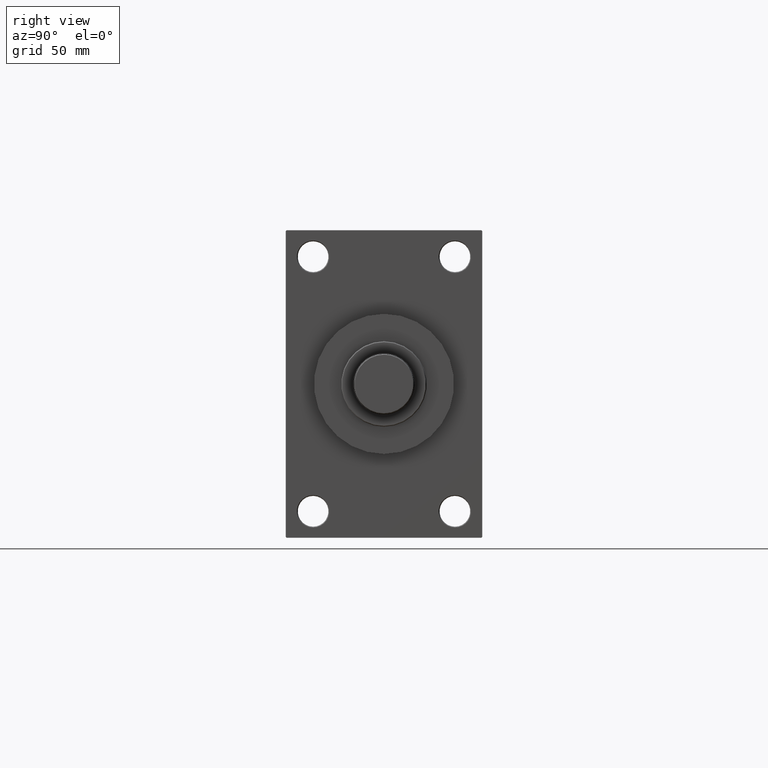
[diagram: clean part render]
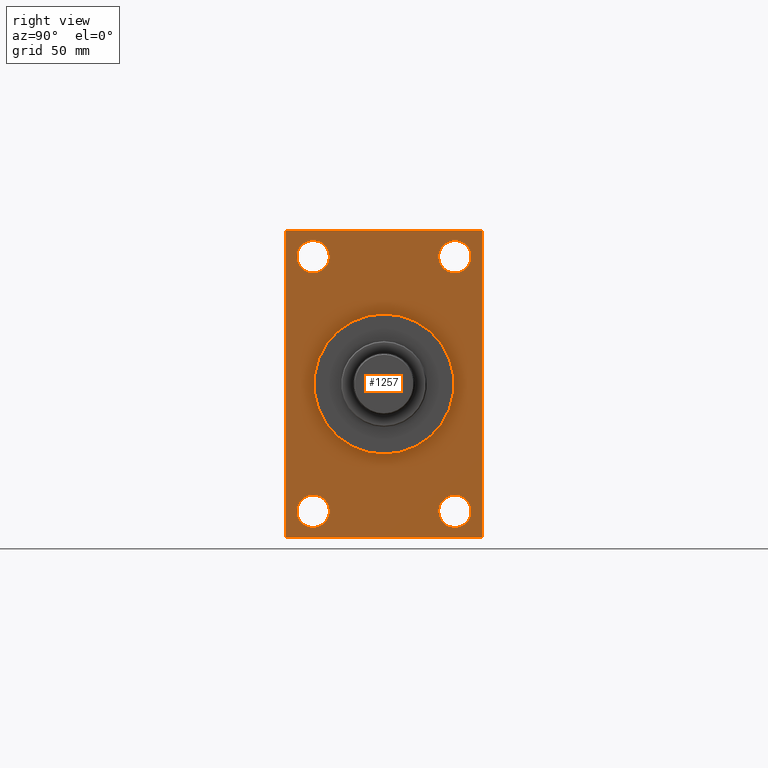
[diagram: same view with one face highlighted and labeled with its STEP entity id]
A machine part, right view. The second image highlights one B-rep face of the part: STEP entity #1257.
In plain terms, the highlighted planar face has unit normal (-1, 0, 0).
Its self-contained STEP definition (entity closure, byte-faithful):
#439 = LINE ( 'NONE', #7283, #30003 ) ;
#1257 = ADVANCED_FACE ( 'NONE', ( #40769, #7895, #30276, #26161, #44657, #29572 ), #44181, .F. ) ;
#1533 = VERTEX_POINT ( 'NONE', #10318 ) ;
#2007 = DIRECTION ( 'NONE',  ( 0.000000000000000000, 0.000000000000000000, -1.000000000000000000 ) ) ;
#2124 = DIRECTION ( 'NONE',  ( -1.000000000000000000, -0.000000000000000000, -0.000000000000000000 ) ) ;
#2259 = DIRECTION ( 'NONE',  ( -1.000000000000000000, -0.000000000000000000, -0.000000000000000000 ) ) ;
#3126 = CARTESIAN_POINT ( 'NONE',  ( 264.0000000000000000, 0.000000000000000000, 41.00000000000000000 ) ) ;
#3174 = ORIENTED_EDGE ( 'NONE', *, *, #18250, .T. ) ;
#3189 = CARTESIAN_POINT ( 'NONE',  ( 264.0000000000000000, 41.49999999999999289, 74.50000000000001421 ) ) ;
#3218 = ORIENTED_EDGE ( 'NONE', *, *, #27982, .T. ) ;
#3869 = EDGE_LOOP ( 'NONE', ( #9653, #43573 ) ) ;
#3962 = ORIENTED_EDGE ( 'NONE', *, *, #41579, .T. ) ;
#4063 = VERTEX_POINT ( 'NONE', #35693 ) ;
#4368 = CARTESIAN_POINT ( 'NONE',  ( 264.0000000000000000, 41.49999999999999289, 65.00000000000005684 ) ) ;
#4671 = VERTEX_POINT ( 'NONE', #27491 ) ;
#4779 = ORIENTED_EDGE ( 'NONE', *, *, #6148, .T. ) ;
#5546 = VERTEX_POINT ( 'NONE', #5891 ) ;
#5891 = CARTESIAN_POINT ( 'NONE',  ( 264.0000000000000000, -41.50000000000000711, -83.99999999999992895 ) ) ;
#5987 = CIRCLE ( 'NONE', #19215, 9.499999999999953815 ) ;
#5997 = ORIENTED_EDGE ( 'NONE', *, *, #31874, .T. ) ;
#6129 = VECTOR ( 'NONE', #44430, 1000.000000000000000 ) ;
#6148 = EDGE_CURVE ( 'NONE', #43293, #46930, #47675, .T. ) ;
#6236 = DIRECTION ( 'NONE',  ( -1.000000000000000000, -0.000000000000000000, -0.000000000000000000 ) ) ;
#6815 = VECTOR ( 'NONE', #47874, 1000.000000000000000 ) ;
#7283 = CARTESIAN_POINT ( 'NONE',  ( 264.0000000000000000, 57.50000000000000000, -89.50000000000000000 ) ) ;
#7895 = FACE_BOUND ( 'NONE', #11377, .T. ) ;
#8031 = DIRECTION ( 'NONE',  ( 0.000000000000000000, 0.000000000000000000, 1.000000000000000000 ) ) ;
#9022 = CARTESIAN_POINT ( 'NONE',  ( 264.0000000000000000, 0.000000000000000000, 0.000000000000000000 ) ) ;
#9478 = VERTEX_POINT ( 'NONE', #40343 ) ;
#9653 = ORIENTED_EDGE ( 'NONE', *, *, #34565, .T. ) ;
#10318 = CARTESIAN_POINT ( 'NONE',  ( 264.0000000000000000, -41.50000000000000711, -65.00000000000002842 ) ) ;
#10461 = EDGE_LOOP ( 'NONE', ( #3962, #29734 ) ) ;
#10854 = DIRECTION ( 'NONE',  ( -1.000000000000000000, 0.000000000000000000, -0.000000000000000000 ) ) ;
#11122 = DIRECTION ( 'NONE',  ( 0.000000000000000000, -0.7071067811865867636, 0.7071067811865081598 ) ) ;
#11345 = VERTEX_POINT ( 'NONE', #27713 ) ;
#11377 = EDGE_LOOP ( 'NONE', ( #39455, #3218 ) ) ;
#12013 = VERTEX_POINT ( 'NONE', #12448 ) ;
#12234 = VECTOR ( 'NONE', #11122, 1000.000000000000000 ) ;
#12257 = VERTEX_POINT ( 'NONE', #14094 ) ;
#12448 = CARTESIAN_POINT ( 'NONE',  ( 264.0000000000000000, 57.00000000000000000, -90.00000000000000000 ) ) ;
#13076 = VECTOR ( 'NONE', #30802, 1000.000000000000000 ) ;
#13752 = CARTESIAN_POINT ( 'NONE',  ( 264.0000000000000000, 41.49999999999999289, -83.99999999999992895 ) ) ;
#14094 = CARTESIAN_POINT ( 'NONE',  ( 264.0000000000000000, -57.00000000000000000, 90.00000000000000000 ) ) ;
#14121 = CIRCLE ( 'NONE', #18002, 9.499999999999953815 ) ;
#14205 = VERTEX_POINT ( 'NONE', #46781 ) ;
#14457 = EDGE_CURVE ( 'NONE', #12257, #11345, #28710, .T. ) ;
#14559 = AXIS2_PLACEMENT_3D ( 'NONE', #9022, #38473, #34803 ) ;
#15007 = CARTESIAN_POINT ( 'NONE',  ( 264.0000000000000000, 56.99999999999994316, 90.00000000000000000 ) ) ;
#15752 = CARTESIAN_POINT ( 'NONE',  ( 264.0000000000000000, -56.99999999999994316, -90.00000000000000000 ) ) ;
#16076 = CIRCLE ( 'NONE', #43306, 9.499999999999953815 ) ;
#16092 = EDGE_CURVE ( 'NONE', #12013, #4063, #439, .T. ) ;
#17162 = DIRECTION ( 'NONE',  ( -1.000000000000000000, -0.000000000000000000, -0.000000000000000000 ) ) ;
#17431 = DIRECTION ( 'NONE',  ( 0.000000000000000000, 0.000000000000000000, 1.000000000000000000 ) ) ;
#17525 = VERTEX_POINT ( 'NONE', #47299 ) ;
#17647 = VECTOR ( 'NONE', #23236, 1000.000000000000000 ) ;
#17688 = AXIS2_PLACEMENT_3D ( 'NONE', #3189, #36060, #39705 ) ;
#17802 = VERTEX_POINT ( 'NONE', #3126 ) ;
#18002 = AXIS2_PLACEMENT_3D ( 'NONE', #42047, #2124, #31328 ) ;
#18190 = LINE ( 'NONE', #33013, #6815 ) ;
#18250 = EDGE_CURVE ( 'NONE', #11345, #43293, #18863, .T. ) ;
#18392 = LINE ( 'NONE', #40785, #6129 ) ;
#18446 = CIRCLE ( 'NONE', #17688, 9.499999999999953815 ) ;
#18711 = EDGE_CURVE ( 'NONE', #17525, #24856, #18446, .T. ) ;
#18863 = LINE ( 'NONE', #34649, #17647 ) ;
#19215 = AXIS2_PLACEMENT_3D ( 'NONE', #39682, #25315, #21421 ) ;
#19807 = VERTEX_POINT ( 'NONE', #13752 ) ;
#20268 = DIRECTION ( 'NONE',  ( 0.000000000000000000, 0.000000000000000000, 1.000000000000000000 ) ) ;
#21051 = EDGE_CURVE ( 'NONE', #17802, #31660, #36303, .T. ) ;
#21155 = CARTESIAN_POINT ( 'NONE',  ( 264.0000000000000000, -56.99999999999994316, -90.00000000000000000 ) ) ;
#21302 = DIRECTION ( 'NONE',  ( 0.000000000000000000, 0.000000000000000000, 1.000000000000000000 ) ) ;
#21421 = DIRECTION ( 'NONE',  ( 0.000000000000000000, 0.000000000000000000, 1.000000000000000000 ) ) ;
#21538 = CARTESIAN_POINT ( 'NONE',  ( 264.0000000000000000, -41.50000000000000711, -74.49999999999998579 ) ) ;
#21626 = CIRCLE ( 'NONE', #33250, 41.00000000000000000 ) ;
#21695 = ORIENTED_EDGE ( 'NONE', *, *, #33173, .F. ) ;
#22549 = CARTESIAN_POINT ( 'NONE',  ( 264.0000000000000000, -57.50000000000000000, -89.49999999999994316 ) ) ;
#22707 = EDGE_CURVE ( 'NONE', #5546, #1533, #36376, .T. ) ;
#22887 = ORIENTED_EDGE ( 'NONE', *, *, #34263, .T. ) ;
#23236 = DIRECTION ( 'NONE',  ( 0.000000000000000000, 0.000000000000000000, -1.000000000000000000 ) ) ;
#23346 = DIRECTION ( 'NONE',  ( 0.000000000000000000, 0.000000000000000000, 1.000000000000000000 ) ) ;
#24799 = EDGE_CURVE ( 'NONE', #19807, #36792, #45735, .T. ) ;
#24856 = VERTEX_POINT ( 'NONE', #4368 ) ;
#25315 = DIRECTION ( 'NONE',  ( -1.000000000000000000, -0.000000000000000000, -0.000000000000000000 ) ) ;
#25541 = CARTESIAN_POINT ( 'NONE',  ( 264.0000000000000000, 5.021051876504148963E-15, -41.00000000000000000 ) ) ;
#25766 = CARTESIAN_POINT ( 'NONE',  ( 264.0000000000000000, -41.50000000000000711, 65.00000000000005684 ) ) ;
#25979 = ORIENTED_EDGE ( 'NONE', *, *, #21051, .F. ) ;
#26161 = FACE_BOUND ( 'NONE', #3869, .T. ) ;
#26258 = AXIS2_PLACEMENT_3D ( 'NONE', #21538, #17162, #21302 ) ;
#26692 = LINE ( 'NONE', #30089, #13076 ) ;
#27491 = CARTESIAN_POINT ( 'NONE',  ( 264.0000000000000000, 57.50000000000000000, 89.50000000000000000 ) ) ;
#27713 = CARTESIAN_POINT ( 'NONE',  ( 264.0000000000000000, -57.50000000000000000, 89.50000000000000000 ) ) ;
#27982 = EDGE_CURVE ( 'NONE', #1533, #5546, #5987, .T. ) ;
#28516 = ORIENTED_EDGE ( 'NONE', *, *, #14457, .T. ) ;
#28619 = EDGE_CURVE ( 'NONE', #9478, #46860, #16076, .T. ) ;
#28710 = LINE ( 'NONE', #28946, #42368 ) ;
#28946 = CARTESIAN_POINT ( 'NONE',  ( 264.0000000000000000, -57.50000000000000000, 89.50000000000000000 ) ) ;
#29408 = CIRCLE ( 'NONE', #44962, 9.499999999999953815 ) ;
#29572 = FACE_OUTER_BOUND ( 'NONE', #45548, .T. ) ;
#29734 = ORIENTED_EDGE ( 'NONE', *, *, #28619, .T. ) ;
#30003 = VECTOR ( 'NONE', #30364, 1000.000000000000114 ) ;
#30089 = CARTESIAN_POINT ( 'NONE',  ( 264.0000000000000000, 57.50000000000000000, 90.00000000000000000 ) ) ;
#30166 = CARTESIAN_POINT ( 'NONE',  ( 264.0000000000000000, 41.49999999999999289, -74.49999999999998579 ) ) ;
#30276 = FACE_BOUND ( 'NONE', #44208, .T. ) ;
#30364 = DIRECTION ( 'NONE',  ( -0.000000000000000000, 0.7071067811865474617, 0.7071067811865474617 ) ) ;
#30802 = DIRECTION ( 'NONE',  ( 0.000000000000000000, -1.000000000000000000, 0.000000000000000000 ) ) ;
#30966 = AXIS2_PLACEMENT_3D ( 'NONE', #30166, #45022, #8031 ) ;
#31174 = ORIENTED_EDGE ( 'NONE', *, *, #33735, .T. ) ;
#31204 = CARTESIAN_POINT ( 'NONE',  ( 264.0000000000000000, 0.000000000000000000, 0.000000000000000000 ) ) ;
#31328 = DIRECTION ( 'NONE',  ( 0.000000000000000000, 0.000000000000000000, 1.000000000000000000 ) ) ;
#31660 = VERTEX_POINT ( 'NONE', #25541 ) ;
#31874 = EDGE_CURVE ( 'NONE', #4671, #14205, #44215, .T. ) ;
#32836 = EDGE_CURVE ( 'NONE', #12013, #46930, #18190, .T. ) ;
#33013 = CARTESIAN_POINT ( 'NONE',  ( 264.0000000000000000, 57.50000000000000000, -90.00000000000000000 ) ) ;
#33173 = EDGE_CURVE ( 'NONE', #31660, #17802, #21626, .T. ) ;
#33250 = AXIS2_PLACEMENT_3D ( 'NONE', #31204, #43146, #2007 ) ;
#33735 = EDGE_CURVE ( 'NONE', #14205, #12257, #26692, .T. ) ;
#34263 = EDGE_CURVE ( 'NONE', #36792, #19807, #29408, .T. ) ;
#34295 = ORIENTED_EDGE ( 'NONE', *, *, #24799, .T. ) ;
#34565 = EDGE_CURVE ( 'NONE', #24856, #17525, #34841, .T. ) ;
#34649 = CARTESIAN_POINT ( 'NONE',  ( 264.0000000000000000, -57.50000000000000000, 90.00000000000000000 ) ) ;
#34803 = DIRECTION ( 'NONE',  ( 0.000000000000000000, 0.000000000000000000, -1.000000000000000000 ) ) ;
#34841 = CIRCLE ( 'NONE', #40320, 9.499999999999953815 ) ;
#34945 = EDGE_LOOP ( 'NONE', ( #25979, #21695 ) ) ;
#35693 = CARTESIAN_POINT ( 'NONE',  ( 264.0000000000000000, 57.50000000000000000, -89.49999999999994316 ) ) ;
#35726 = EDGE_CURVE ( 'NONE', #4671, #4063, #18392, .T. ) ;
#36010 = VECTOR ( 'NONE', #39413, 1000.000000000000000 ) ;
#36060 = DIRECTION ( 'NONE',  ( -1.000000000000000000, -0.000000000000000000, -0.000000000000000000 ) ) ;
#36245 = DIRECTION ( 'NONE',  ( -0.000000000000000000, -0.7071067811865474617, -0.7071067811865474617 ) ) ;
#36303 = CIRCLE ( 'NONE', #14559, 41.00000000000000000 ) ;
#36376 = CIRCLE ( 'NONE', #26258, 9.499999999999953815 ) ;
#36792 = VERTEX_POINT ( 'NONE', #37136 ) ;
#37136 = CARTESIAN_POINT ( 'NONE',  ( 264.0000000000000000, 41.49999999999999289, -65.00000000000002842 ) ) ;
#38117 = ORIENTED_EDGE ( 'NONE', *, *, #32836, .F. ) ;
#38188 = CARTESIAN_POINT ( 'NONE',  ( 264.0000000000000000, 41.49999999999999289, -74.49999999999998579 ) ) ;
#38473 = DIRECTION ( 'NONE',  ( 1.000000000000000000, 0.000000000000000000, 0.000000000000000000 ) ) ;
#38782 = CARTESIAN_POINT ( 'NONE',  ( 264.0000000000000000, -41.50000000000000711, 74.50000000000001421 ) ) ;
#39413 = DIRECTION ( 'NONE',  ( 0.000000000000000000, 0.7071067811865867636, -0.7071067811865081598 ) ) ;
#39455 = ORIENTED_EDGE ( 'NONE', *, *, #22707, .T. ) ;
#39584 = CARTESIAN_POINT ( 'NONE',  ( 264.0000000000000000, 41.49999999999999289, 74.50000000000001421 ) ) ;
#39682 = CARTESIAN_POINT ( 'NONE',  ( 264.0000000000000000, -41.50000000000000711, -74.49999999999998579 ) ) ;
#39705 = DIRECTION ( 'NONE',  ( 0.000000000000000000, 0.000000000000000000, 1.000000000000000000 ) ) ;
#39758 = AXIS2_PLACEMENT_3D ( 'NONE', #45130, #10854, #44893 ) ;
#40320 = AXIS2_PLACEMENT_3D ( 'NONE', #39584, #6236, #17431 ) ;
#40343 = CARTESIAN_POINT ( 'NONE',  ( 264.0000000000000000, -41.50000000000000711, 83.99999999999995737 ) ) ;
#40769 = FACE_BOUND ( 'NONE', #10461, .T. ) ;
#40785 = CARTESIAN_POINT ( 'NONE',  ( 264.0000000000000000, 57.50000000000000000, 90.00000000000000000 ) ) ;
#41355 = DIRECTION ( 'NONE',  ( -1.000000000000000000, -0.000000000000000000, -0.000000000000000000 ) ) ;
#41579 = EDGE_CURVE ( 'NONE', #46860, #9478, #14121, .T. ) ;
#42047 = CARTESIAN_POINT ( 'NONE',  ( 264.0000000000000000, -41.50000000000000711, 74.50000000000001421 ) ) ;
#42368 = VECTOR ( 'NONE', #36245, 1000.000000000000114 ) ;
#43146 = DIRECTION ( 'NONE',  ( 1.000000000000000000, 0.000000000000000000, 0.000000000000000000 ) ) ;
#43293 = VERTEX_POINT ( 'NONE', #22549 ) ;
#43306 = AXIS2_PLACEMENT_3D ( 'NONE', #38782, #2259, #20268 ) ;
#43573 = ORIENTED_EDGE ( 'NONE', *, *, #18711, .T. ) ;
#43590 = ORIENTED_EDGE ( 'NONE', *, *, #35726, .F. ) ;
#44181 = PLANE ( 'NONE',  #39758 ) ;
#44208 = EDGE_LOOP ( 'NONE', ( #34295, #22887 ) ) ;
#44215 = LINE ( 'NONE', #15007, #12234 ) ;
#44296 = ORIENTED_EDGE ( 'NONE', *, *, #16092, .T. ) ;
#44430 = DIRECTION ( 'NONE',  ( 0.000000000000000000, 0.000000000000000000, -1.000000000000000000 ) ) ;
#44657 = FACE_BOUND ( 'NONE', #34945, .T. ) ;
#44893 = DIRECTION ( 'NONE',  ( -0.000000000000000000, 0.000000000000000000, 1.000000000000000000 ) ) ;
#44962 = AXIS2_PLACEMENT_3D ( 'NONE', #38188, #41355, #23346 ) ;
#45022 = DIRECTION ( 'NONE',  ( -1.000000000000000000, -0.000000000000000000, -0.000000000000000000 ) ) ;
#45130 = CARTESIAN_POINT ( 'NONE',  ( 264.0000000000000000, 0.000000000000000000, 0.000000000000000000 ) ) ;
#45548 = EDGE_LOOP ( 'NONE', ( #3174, #4779, #38117, #44296, #43590, #5997, #31174, #28516 ) ) ;
#45735 = CIRCLE ( 'NONE', #30966, 9.499999999999953815 ) ;
#46781 = CARTESIAN_POINT ( 'NONE',  ( 264.0000000000000000, 56.99999999999994316, 90.00000000000000000 ) ) ;
#46860 = VERTEX_POINT ( 'NONE', #25766 ) ;
#46930 = VERTEX_POINT ( 'NONE', #15752 ) ;
#47299 = CARTESIAN_POINT ( 'NONE',  ( 264.0000000000000000, 41.49999999999999289, 83.99999999999995737 ) ) ;
#47675 = LINE ( 'NONE', #21155, #36010 ) ;
#47874 = DIRECTION ( 'NONE',  ( 0.000000000000000000, -1.000000000000000000, 0.000000000000000000 ) ) ;